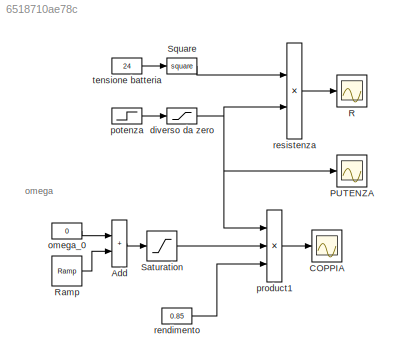
MODEL slx_6518710ae78c
KIND model
CONFIG AbsTol = auto
CONFIG EnableMultiTasking = off
CONFIG FixedStep = auto
CONFIG MaxStep = auto
CONFIG MinStep = auto
CONFIG RelTol = 1e-3
CONFIG SampleTimeConstraint = Unconstrained
CONFIG SolverName = VariableStepAuto
CONFIG StartTime = 0.0
CONFIG StopTime = 10.0
BLOCK [Sum] Add
  IconShape = rectangular
BLOCK [Scope] COPPIA
  Floating = off
  NumInputPorts = 1
  ScopeSpecificationString = Simulink.scopes.TimeScopeBlockCfg('CurrentConfiguration', extmgr.ConfigurationSet(extmgr.Configuration('Core','General UI',true),extmgr.Configuration('Core','Source UI',true),extmgr.Configuration('Sources','WiredSimulink',true,'DataLoggingVariableName','ScopeData2'),extmgr.Configuration('Visuals','Time Domain',true,'SerializedDisplays',{struct('MinYLimReal','-1.41154','MaxYLimReal','12.70586','YLa...<+1818ch>
BLOCK [Scope] PUTENZA
  Floating = off
  NumInputPorts = 1
  ScopeSpecificationString = Simulink.scopes.TimeScopeBlockCfg('CurrentConfiguration', extmgr.ConfigurationSet(extmgr.Configuration('Core','General UI',true),extmgr.Configuration('Core','Source UI',true),extmgr.Configuration('Sources','WiredSimulink',true,'DataLoggingVariableName','ScopeData1'),extmgr.Configuration('Visuals','Time Domain',true,'SerializedDisplays',{struct('MinYLimReal','-71.98875','MaxYLimReal','647.99875','Y...<+1502ch>
BLOCK [Scope] R
  Floating = off
  NumInputPorts = 1
  ScopeSpecificationString = Simulink.scopes.TimeScopeBlockCfg('CurrentConfiguration', extmgr.ConfigurationSet(extmgr.Configuration('Core','General UI',true),extmgr.Configuration('Core','Source UI',true),extmgr.Configuration('Sources','WiredSimulink',true),extmgr.Configuration('Visuals','Time Domain',true,'SerializedDisplays',{struct('MinYLimReal','-7198.875','MaxYLimReal','64799.875','YLabelReal','','MinYLimMag','  0.00000',...<+1733ch>
BLOCK [Reference] Ramp  REF=simulink/Sources/Ramp
  SourceBlock = simulink/Sources/Ramp
  SourceType = Ramp
BLOCK [Saturate] Saturation
  LowerLimit = 1
  UpperLimit = 180
BLOCK [Math] Square
  Operator = square
BLOCK [Saturate] diverso da zero
  LowerLimit = 10e-3
  UpperLimit = 10e4
BLOCK [Constant] omega_0
  Value = 0
BLOCK [Step] potenza
  After = 576
  SampleTime = 0
  Time = 5
BLOCK [Product] product1
  Inputs = *//
BLOCK [Constant] rendimento
  Value = 0.85
BLOCK [Product] resistenza
  Inputs = */
BLOCK [Constant] tensione batteria
  Value = 24
ANNOTATION (root): omega
LINE Add:1 -> Saturation:1
LINE Ramp:1 -> Add:2
LINE Saturation:1 -> product1:2
LINE Square:1 -> resistenza:1
NET diverso da zero:1 -> PUTENZA:1, product1:1, resistenza:2
LINE omega_0:1 -> Add:1
LINE potenza:1 -> diverso da zero:1
LINE product1:1 -> COPPIA:1
LINE rendimento:1 -> product1:3
LINE resistenza:1 -> R:1
LINE tensione batteria:1 -> Square:1
note: NET lines group one-source signal fan-out (src -> all destinations, sorted); 1:1 wires keep LINE
